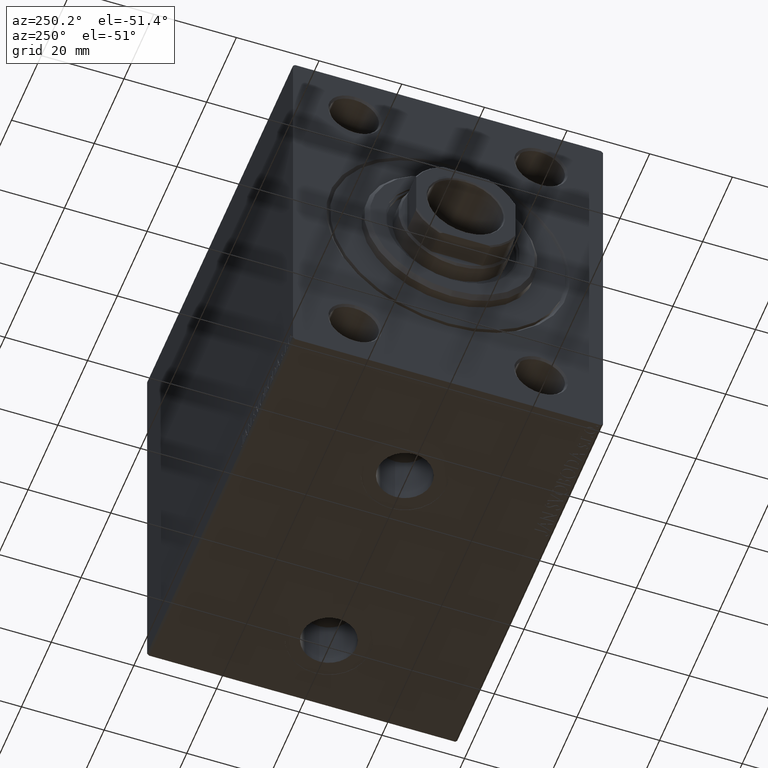
[diagram: clean part render]
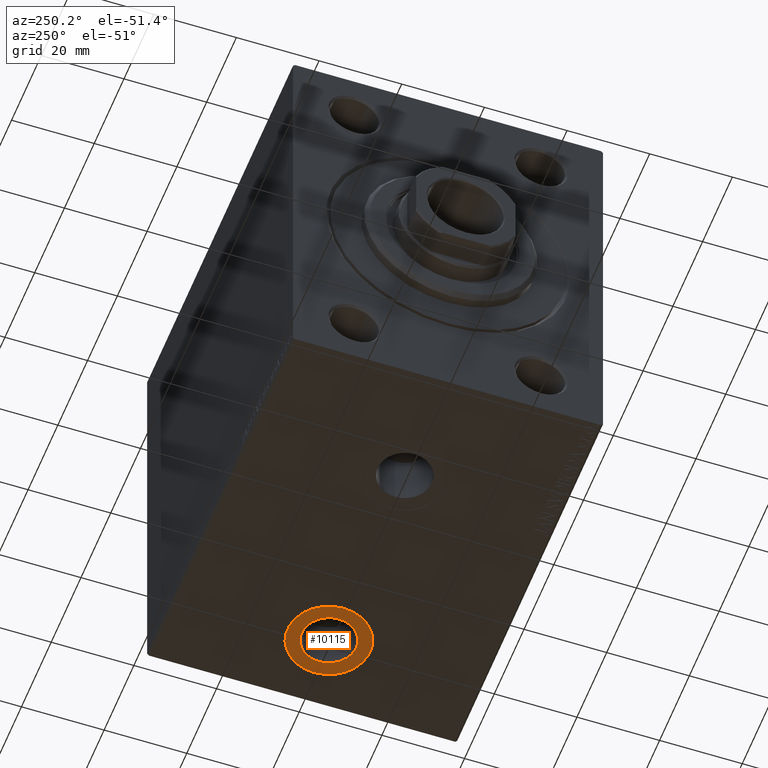
[diagram: same view with one face highlighted and labeled with its STEP entity id]
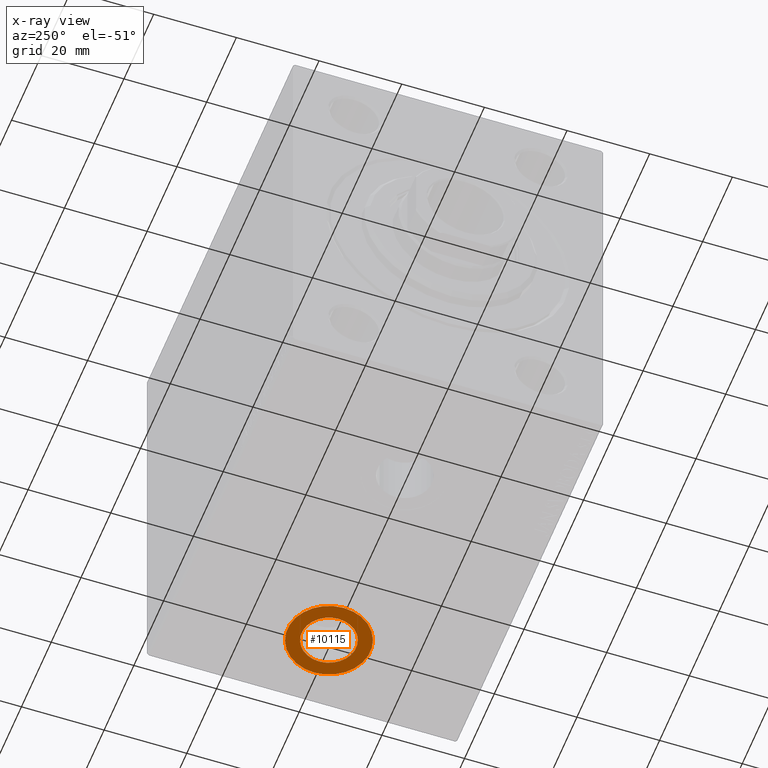
[diagram: x-ray of the same camera — body ghosted, the highlighted face saturated]
A machine part, auxiliary view. The second image highlights one B-rep face of the part: STEP entity #10115.
The next image is the same camera in x-ray: the body ghosted, the highlighted face saturated — about 0% of this face is hidden behind the body in this view.
In plain terms, the highlighted planar face has unit normal (0, 0, -1).
Its self-contained STEP definition (entity closure, byte-faithful):
#1682 = DIRECTION ( 'NONE',  ( 0.000000000000000000, 0.000000000000000000, -1.000000000000000000 ) ) ;
#2449 = VERTEX_POINT ( 'NONE', #12272 ) ;
#4102 = CARTESIAN_POINT ( 'NONE',  ( 80.00000000000001421, -5.788603209277299718E-15, -49.89999999999999858 ) ) ;
#4326 = DIRECTION ( 'NONE',  ( 0.000000000000000000, 0.000000000000000000, -1.000000000000000000 ) ) ;
#5226 = ORIENTED_EDGE ( 'NONE', *, *, #9010, .F. ) ;
#5858 = AXIS2_PLACEMENT_3D ( 'NONE', #4102, #4326, #34695 ) ;
#6418 = DIRECTION ( 'NONE',  ( 0.000000000000000000, 0.000000000000000000, -1.000000000000000000 ) ) ;
#9010 = EDGE_CURVE ( 'NONE', #15232, #23590, #11467, .T. ) ;
#9351 = EDGE_CURVE ( 'NONE', #2449, #25572, #32291, .T. ) ;
#9785 = CARTESIAN_POINT ( 'NONE',  ( 86.58000000000001251, -4.982785615438340676E-15, -49.89999999999999858 ) ) ;
#9991 = DIRECTION ( 'NONE',  ( -1.000000000000000000, 0.000000000000000000, 0.000000000000000000 ) ) ;
#10115 = ADVANCED_FACE ( 'NONE', ( #31321, #17818 ), #35137, .T. ) ;
#10173 = EDGE_LOOP ( 'NONE', ( #33328, #20047 ) ) ;
#10198 = EDGE_CURVE ( 'NONE', #23590, #15232, #18790, .T. ) ;
#11467 = CIRCLE ( 'NONE', #36621, 6.580000000000002736 ) ;
#12272 = CARTESIAN_POINT ( 'NONE',  ( 70.00000000000001421, -5.788603209277299718E-15, -49.89999999999999858 ) ) ;
#12891 = AXIS2_PLACEMENT_3D ( 'NONE', #19856, #40542, #16697 ) ;
#15232 = VERTEX_POINT ( 'NONE', #25037 ) ;
#15390 = CARTESIAN_POINT ( 'NONE',  ( 80.00000000000001421, -5.788603209277299718E-15, -49.89999999999999858 ) ) ;
#16697 = DIRECTION ( 'NONE',  ( -1.000000000000000000, 0.000000000000000000, 0.000000000000000000 ) ) ;
#17818 = FACE_OUTER_BOUND ( 'NONE', #10173, .T. ) ;
#18790 = CIRCLE ( 'NONE', #20198, 6.580000000000002736 ) ;
#19856 = CARTESIAN_POINT ( 'NONE',  ( 80.00000000000001421, -5.788603209277299718E-15, -49.89999999999999858 ) ) ;
#20047 = ORIENTED_EDGE ( 'NONE', *, *, #33740, .T. ) ;
#20198 = AXIS2_PLACEMENT_3D ( 'NONE', #24266, #31026, #29755 ) ;
#22855 = CARTESIAN_POINT ( 'NONE',  ( 90.00000000000001421, -4.563956410129946659E-15, -49.89999999999999858 ) ) ;
#23590 = VERTEX_POINT ( 'NONE', #9785 ) ;
#24266 = CARTESIAN_POINT ( 'NONE',  ( 80.00000000000001421, -5.788603209277299718E-15, -49.89999999999999858 ) ) ;
#24337 = AXIS2_PLACEMENT_3D ( 'NONE', #15390, #1682, #42827 ) ;
#25037 = CARTESIAN_POINT ( 'NONE',  ( 73.42000000000001592, -5.788603209277299718E-15, -49.89999999999999858 ) ) ;
#25572 = VERTEX_POINT ( 'NONE', #22855 ) ;
#26886 = CARTESIAN_POINT ( 'NONE',  ( 80.00000000000001421, -5.788603209277299718E-15, -49.89999999999999858 ) ) ;
#29755 = DIRECTION ( 'NONE',  ( -1.000000000000000000, 0.000000000000000000, 0.000000000000000000 ) ) ;
#31026 = DIRECTION ( 'NONE',  ( 0.000000000000000000, 0.000000000000000000, -1.000000000000000000 ) ) ;
#31321 = FACE_BOUND ( 'NONE', #41885, .T. ) ;
#31996 = ORIENTED_EDGE ( 'NONE', *, *, #10198, .F. ) ;
#32291 = CIRCLE ( 'NONE', #12891, 9.999999999999994671 ) ;
#32982 = CIRCLE ( 'NONE', #24337, 9.999999999999994671 ) ;
#33328 = ORIENTED_EDGE ( 'NONE', *, *, #9351, .T. ) ;
#33740 = EDGE_CURVE ( 'NONE', #25572, #2449, #32982, .T. ) ;
#34695 = DIRECTION ( 'NONE',  ( -1.000000000000000000, 0.000000000000000000, -0.000000000000000000 ) ) ;
#35137 = PLANE ( 'NONE',  #5858 ) ;
#36621 = AXIS2_PLACEMENT_3D ( 'NONE', #26886, #6418, #9991 ) ;
#40542 = DIRECTION ( 'NONE',  ( 0.000000000000000000, 0.000000000000000000, -1.000000000000000000 ) ) ;
#41885 = EDGE_LOOP ( 'NONE', ( #5226, #31996 ) ) ;
#42827 = DIRECTION ( 'NONE',  ( -1.000000000000000000, 0.000000000000000000, 0.000000000000000000 ) ) ;